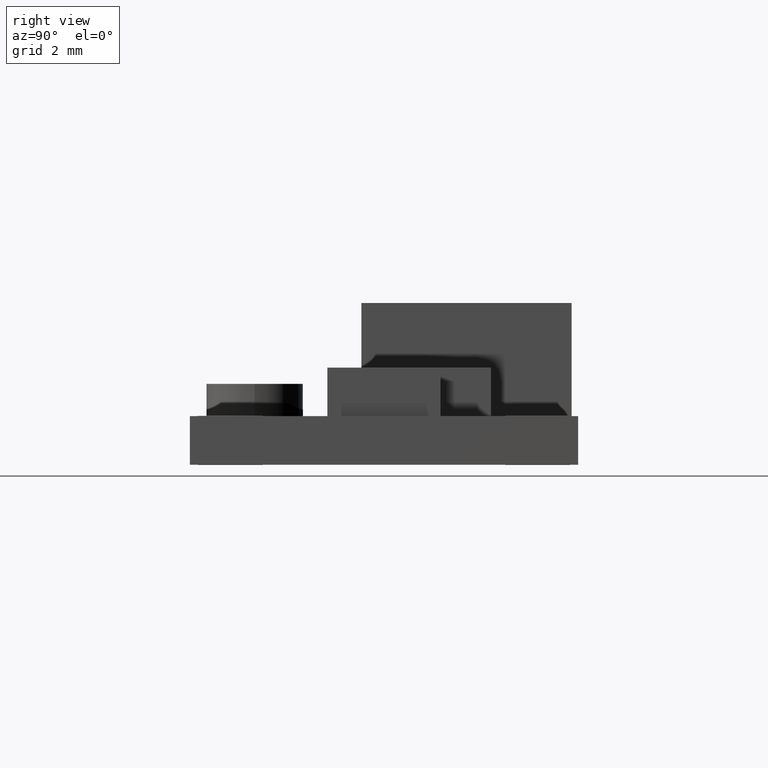
[diagram: clean part render]
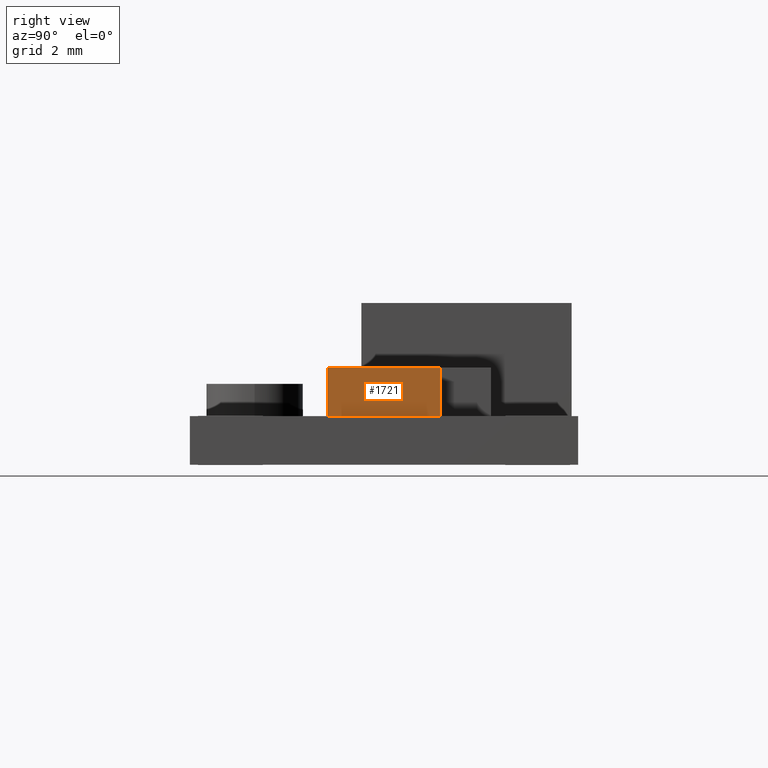
[diagram: same view with one face highlighted and labeled with its STEP entity id]
A machine part, right view. The second image highlights one B-rep face of the part: STEP entity #1721.
In plain terms, the highlighted planar face has unit normal (1, 0, 0).
Its self-contained STEP definition (entity closure, byte-faithful):
#126=FACE_OUTER_BOUND('',#224,.T.);
#224=EDGE_LOOP('',(#1367,#1368,#1369,#1370));
#430=LINE('',#2650,#639);
#431=LINE('',#2653,#640);
#432=LINE('',#2655,#641);
#433=LINE('',#2656,#642);
#639=VECTOR('',#2199,10.);
#640=VECTOR('',#2202,10.);
#641=VECTOR('',#2203,10.);
#642=VECTOR('',#2204,10.);
#795=VERTEX_POINT('',#2646);
#796=VERTEX_POINT('',#2648);
#797=VERTEX_POINT('',#2652);
#798=VERTEX_POINT('',#2654);
#1004=EDGE_CURVE('',#795,#796,#430,.T.);
#1005=EDGE_CURVE('',#795,#797,#431,.T.);
#1006=EDGE_CURVE('',#798,#796,#432,.T.);
#1007=EDGE_CURVE('',#797,#798,#433,.T.);
#1367=ORIENTED_EDGE('',*,*,#1005,.F.);
#1368=ORIENTED_EDGE('',*,*,#1004,.T.);
#1369=ORIENTED_EDGE('',*,*,#1006,.F.);
#1370=ORIENTED_EDGE('',*,*,#1007,.F.);
#1542=PLANE('',#1834);
#1721=ADVANCED_FACE('',(#126),#1542,.T.);
#1834=AXIS2_PLACEMENT_3D('',#2651,#2200,#2201);
#2199=DIRECTION('',(0.,-2.22044604925031E-16,1.));
#2200=DIRECTION('center_axis',(1.,0.,0.));
#2201=DIRECTION('ref_axis',(0.,1.,2.22044604925031E-16));
#2202=DIRECTION('',(0.,-1.,-2.22044604925031E-16));
#2203=DIRECTION('',(0.,1.,2.22044604925031E-16));
#2204=DIRECTION('',(0.,-2.22044604925031E-16,1.));
#2646=CARTESIAN_POINT('',(8.75,-4.26,-4.49));
#2648=CARTESIAN_POINT('',(8.75,-4.26,-2.99));
#2650=CARTESIAN_POINT('',(8.75,-4.26,-4.49));
#2651=CARTESIAN_POINT('Origin',(8.75,-7.76,-4.49));
#2652=CARTESIAN_POINT('',(8.75,-7.76,-4.49));
#2653=CARTESIAN_POINT('',(8.75,-6.885,-4.49));
#2654=CARTESIAN_POINT('',(8.75,-7.76,-2.99));
#2655=CARTESIAN_POINT('',(8.75,-4.26,-2.99));
#2656=CARTESIAN_POINT('',(8.75,-7.76,-4.49));